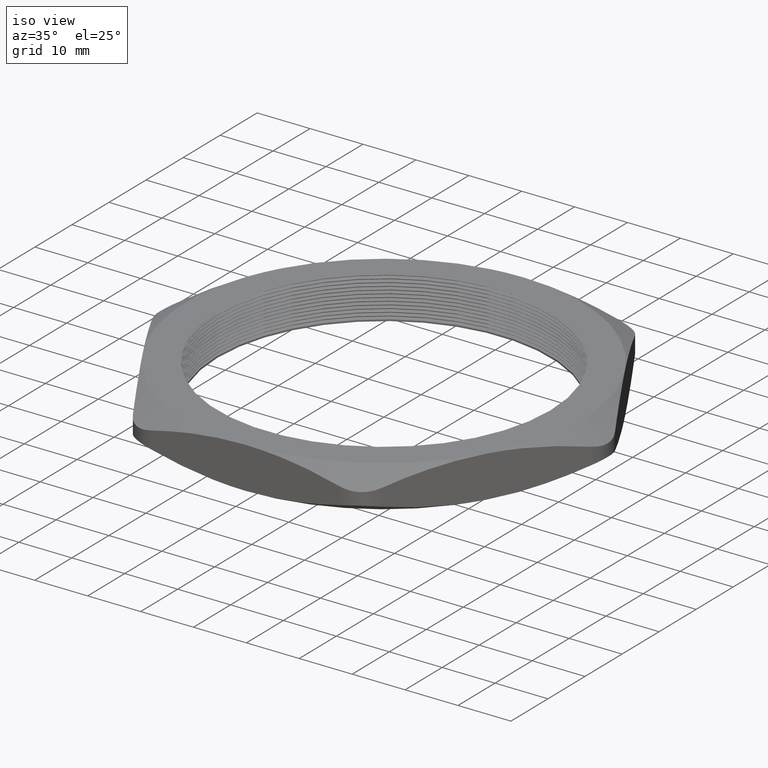
[diagram: clean part render]
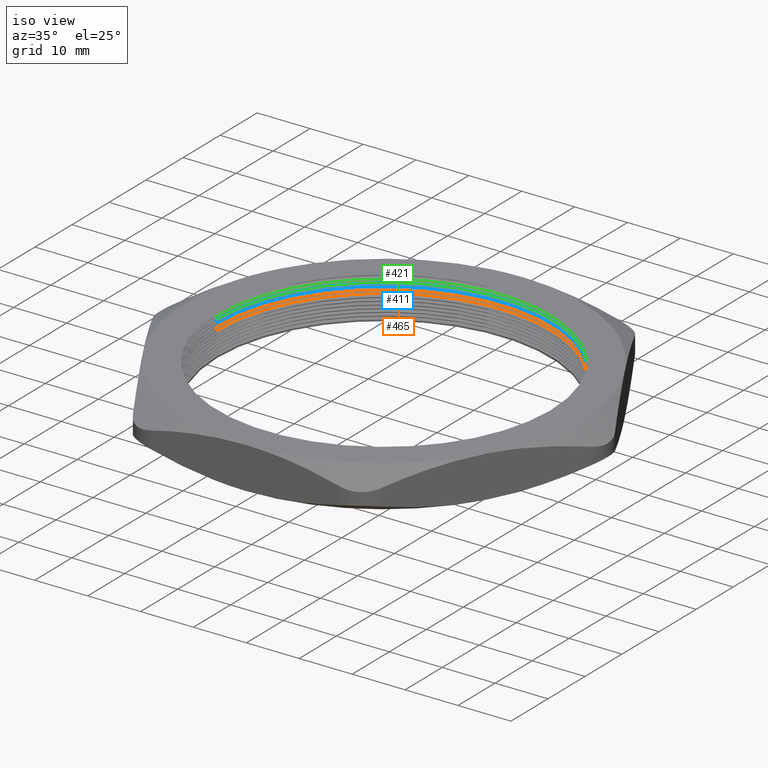
[diagram: same view with three faces highlighted in distinct colors, each labeled with its STEP entity id]
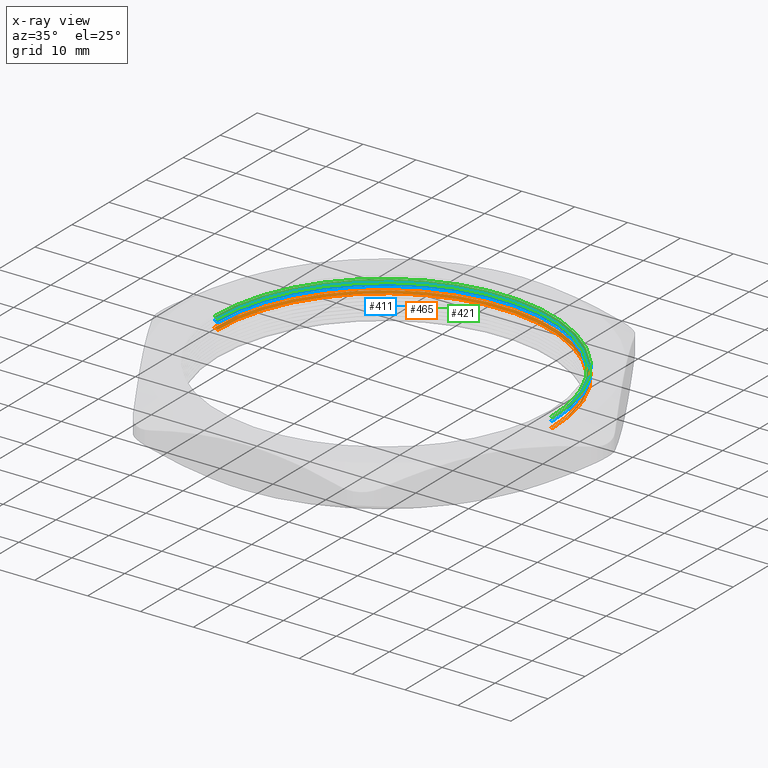
[diagram: x-ray of the same camera — body ghosted, the three highlighted faces saturated]
A machine part, iso view with three faces highlighted in distinct colors.
The next image is the same camera in x-ray (body ghosted, the three faces saturated) — at least one of them is partly hidden behind the body in this view.
Their STEP definitions:

[orange] entity #465 — the highlighted conical surface has half-angle 60 deg.
#444 = ORIENTED_EDGE ( 'NONE', *, *, #583, .T. ) ;
#445 = ORIENTED_EDGE ( 'NONE', *, *, #464, .T. ) ;
#464 = EDGE_CURVE ( 'NONE', #587, #709, #1995, .T. ) ;
#465 = ADVANCED_FACE ( 'NONE', ( #1991 ), #1990, .F. ) ;
#466 = EDGE_LOOP ( 'NONE', ( #467, #468, #444, #445 ) ) ;
#467 = ORIENTED_EDGE ( 'NONE', *, *, #708, .F. ) ;
#468 = ORIENTED_EDGE ( 'NONE', *, *, #1093, .F. ) ;
#583 = EDGE_CURVE ( 'NONE', #706, #587, #2144, .T. ) ;
#587 = VERTEX_POINT ( 'NONE', #2135 ) ;
#705 = VERTEX_POINT ( 'NONE', #2355 ) ;
#706 = VERTEX_POINT ( 'NONE', #2354 ) ;
#708 = EDGE_CURVE ( 'NONE', #705, #709, #2353, .T. ) ;
#709 = VERTEX_POINT ( 'NONE', #2349 ) ;
#1093 = EDGE_CURVE ( 'NONE', #706, #705, #2889, .T. ) ;
#1985 = DIRECTION ( 'NONE',  ( 1.000000000000000000, 0.0000000000000000000, 0.0000000000000000000 ) ) ;
#1986 = DIRECTION ( 'NONE',  ( 0.0000000000000000000, 0.0000000000000000000, 1.000000000000000000 ) ) ;
#1987 = CARTESIAN_POINT ( 'NONE',  ( 0.0000000000000000000, 0.0000000000000000000, 0.1869059892324146900 ) ) ;
#1988 = AXIS2_PLACEMENT_3D ( 'NONE', #1987, #1986, #1985 ) ;
#1990 = CONICAL_SURFACE ( 'NONE', #1988, 1.240000000000000000, 1.047197551196589900 ) ;
#1991 = FACE_OUTER_BOUND ( 'NONE', #466, .T. ) ;
#1992 = DIRECTION ( 'NONE',  ( 1.000000000000000000, 0.0000000000000000000, 0.0000000000000000000 ) ) ;
#1993 = DIRECTION ( 'NONE',  ( 0.0000000000000000000, 0.0000000000000000000, 1.000000000000000000 ) ) ;
#1994 = AXIS2_PLACEMENT_3D ( 'NONE', #2000, #1993, #1992 ) ;
#1995 = CIRCLE ( 'NONE', #1994, 1.260000000000000000 ) ;
#2000 = CARTESIAN_POINT ( 'NONE',  ( 0.0000000000000000000, 0.0000000000000000000, 0.1984529946162075000 ) ) ;
#2135 = CARTESIAN_POINT ( 'NONE',  ( 1.260000000000000000, 1.543054966925665100E-016, 0.1984529946162075000 ) ) ;
#2137 = DIRECTION ( 'NONE',  ( 0.8660254037844346000, 0.0000000000000000000, 0.5000000000000068800 ) ) ;
#2138 = VECTOR ( 'NONE', #2137, 39.37007874015748100 ) ;
#2139 = CARTESIAN_POINT ( 'NONE',  ( 1.240000000000000000, 0.0000000000000000000, 0.1869059892324146900 ) ) ;
#2144 = LINE ( 'NONE', #2139, #2138 ) ;
#2349 = CARTESIAN_POINT ( 'NONE',  ( -1.260000000000000000, 0.0000000000000000000, 0.1984529946162075000 ) ) ;
#2350 = DIRECTION ( 'NONE',  ( -0.8660254037844346000, 1.060575238724902100E-016, 0.5000000000000068800 ) ) ;
#2351 = VECTOR ( 'NONE', #2350, 39.37007874015748100 ) ;
#2352 = CARTESIAN_POINT ( 'NONE',  ( -1.240000000000000000, 1.518562030942717800E-016, 0.1869059892324146900 ) ) ;
#2353 = LINE ( 'NONE', #2352, #2351 ) ;
#2354 = CARTESIAN_POINT ( 'NONE',  ( 1.240000000000000000, 1.518562030942717800E-016, 0.1869059892324146900 ) ) ;
#2355 = CARTESIAN_POINT ( 'NONE',  ( -1.240000000000000000, 0.0000000000000000000, 0.1869059892324146900 ) ) ;
#2886 = DIRECTION ( 'NONE',  ( 1.000000000000000000, 0.0000000000000000000, 0.0000000000000000000 ) ) ;
#2887 = DIRECTION ( 'NONE',  ( 0.0000000000000000000, 0.0000000000000000000, 1.000000000000000000 ) ) ;
#2888 = AXIS2_PLACEMENT_3D ( 'NONE', #2894, #2887, #2886 ) ;
#2889 = CIRCLE ( 'NONE', #2888, 1.240000000000000000 ) ;
#2894 = CARTESIAN_POINT ( 'NONE',  ( 0.0000000000000000000, 0.0000000000000000000, 0.1869059892324146900 ) ) ;

[blue] entity #411 — the highlighted conical surface has half-angle 60 deg.
#410 = EDGE_CURVE ( 'NONE', #590, #621, #1873, .T. ) ;
#411 = ADVANCED_FACE ( 'NONE', ( #1874 ), #1935, .F. ) ;
#412 = EDGE_LOOP ( 'NONE', ( #413, #414, #415, #469 ) ) ;
#413 = ORIENTED_EDGE ( 'NONE', *, *, #622, .F. ) ;
#414 = ORIENTED_EDGE ( 'NONE', *, *, #1080, .F. ) ;
#415 = ORIENTED_EDGE ( 'NONE', *, *, #613, .T. ) ;
#469 = ORIENTED_EDGE ( 'NONE', *, *, #410, .T. ) ;
#590 = VERTEX_POINT ( 'NONE', #2130 ) ;
#613 = EDGE_CURVE ( 'NONE', #629, #590, #2161, .T. ) ;
#621 = VERTEX_POINT ( 'NONE', #2200 ) ;
#622 = EDGE_CURVE ( 'NONE', #628, #621, #2199, .T. ) ;
#628 = VERTEX_POINT ( 'NONE', #2248 ) ;
#629 = VERTEX_POINT ( 'NONE', #2247 ) ;
#1080 = EDGE_CURVE ( 'NONE', #629, #628, #2865, .T. ) ;
#1870 = DIRECTION ( 'NONE',  ( 1.000000000000000000, 0.0000000000000000000, 0.0000000000000000000 ) ) ;
#1871 = DIRECTION ( 'NONE',  ( 0.0000000000000000000, 0.0000000000000000000, 1.000000000000000000 ) ) ;
#1872 = AXIS2_PLACEMENT_3D ( 'NONE', #1878, #1871, #1870 ) ;
#1873 = CIRCLE ( 'NONE', #1872, 1.260000000000000000 ) ;
#1874 = FACE_OUTER_BOUND ( 'NONE', #412, .T. ) ;
#1878 = CARTESIAN_POINT ( 'NONE',  ( 0.0000000000000000000, 0.0000000000000000000, 0.2484529946162074800 ) ) ;
#1930 = DIRECTION ( 'NONE',  ( 1.000000000000000000, 0.0000000000000000000, 0.0000000000000000000 ) ) ;
#1931 = DIRECTION ( 'NONE',  ( 0.0000000000000000000, 0.0000000000000000000, 1.000000000000000000 ) ) ;
#1932 = CARTESIAN_POINT ( 'NONE',  ( 0.0000000000000000000, 0.0000000000000000000, 0.2369059892324147100 ) ) ;
#1933 = AXIS2_PLACEMENT_3D ( 'NONE', #1932, #1931, #1930 ) ;
#1935 = CONICAL_SURFACE ( 'NONE', #1933, 1.240000000000000000, 1.047197551196589900 ) ;
#2130 = CARTESIAN_POINT ( 'NONE',  ( 1.260000000000000000, 1.543054966925665100E-016, 0.2484529946162074800 ) ) ;
#2158 = DIRECTION ( 'NONE',  ( 0.8660254037844346000, 0.0000000000000000000, 0.5000000000000068800 ) ) ;
#2159 = VECTOR ( 'NONE', #2158, 39.37007874015748100 ) ;
#2160 = CARTESIAN_POINT ( 'NONE',  ( 1.240000000000000000, 0.0000000000000000000, 0.2369059892324147100 ) ) ;
#2161 = LINE ( 'NONE', #2160, #2159 ) ;
#2196 = DIRECTION ( 'NONE',  ( -0.8660254037844346000, 1.060575238724902100E-016, 0.5000000000000068800 ) ) ;
#2197 = VECTOR ( 'NONE', #2196, 39.37007874015748100 ) ;
#2198 = CARTESIAN_POINT ( 'NONE',  ( -1.240000000000000000, 1.518562030942717800E-016, 0.2369059892324147100 ) ) ;
#2199 = LINE ( 'NONE', #2198, #2197 ) ;
#2200 = CARTESIAN_POINT ( 'NONE',  ( -1.260000000000000000, 0.0000000000000000000, 0.2484529946162074800 ) ) ;
#2247 = CARTESIAN_POINT ( 'NONE',  ( 1.240000000000000000, 1.518562030942717800E-016, 0.2369059892324147100 ) ) ;
#2248 = CARTESIAN_POINT ( 'NONE',  ( -1.240000000000000000, 0.0000000000000000000, 0.2369059892324147100 ) ) ;
#2857 = DIRECTION ( 'NONE',  ( 1.000000000000000000, 0.0000000000000000000, 0.0000000000000000000 ) ) ;
#2858 = DIRECTION ( 'NONE',  ( 0.0000000000000000000, 0.0000000000000000000, 1.000000000000000000 ) ) ;
#2859 = CARTESIAN_POINT ( 'NONE',  ( 0.0000000000000000000, 0.0000000000000000000, 0.2369059892324147100 ) ) ;
#2860 = AXIS2_PLACEMENT_3D ( 'NONE', #2859, #2858, #2857 ) ;
#2865 = CIRCLE ( 'NONE', #2860, 1.240000000000000000 ) ;

[green] entity #421 — the highlighted conical surface has half-angle 60 deg.
#158 = EDGE_CURVE ( 'NONE', #601, #623, #1306, .T. ) ;
#420 = EDGE_CURVE ( 'NONE', #675, #596, #1934, .T. ) ;
#421 = ADVANCED_FACE ( 'NONE', ( #1925 ), #1924, .F. ) ;
#422 = EDGE_LOOP ( 'NONE', ( #423, #424, #425, #426 ) ) ;
#423 = ORIENTED_EDGE ( 'NONE', *, *, #676, .F. ) ;
#424 = ORIENTED_EDGE ( 'NONE', *, *, #158, .F. ) ;
#425 = ORIENTED_EDGE ( 'NONE', *, *, #673, .T. ) ;
#426 = ORIENTED_EDGE ( 'NONE', *, *, #420, .T. ) ;
#596 = VERTEX_POINT ( 'NONE', #2180 ) ;
#601 = VERTEX_POINT ( 'NONE', #2178 ) ;
#623 = VERTEX_POINT ( 'NONE', #2195 ) ;
#673 = EDGE_CURVE ( 'NONE', #601, #675, #2295, .T. ) ;
#675 = VERTEX_POINT ( 'NONE', #2285 ) ;
#676 = EDGE_CURVE ( 'NONE', #623, #596, #2347, .T. ) ;
#1298 = DIRECTION ( 'NONE',  ( 1.000000000000000000, 0.0000000000000000000, 0.0000000000000000000 ) ) ;
#1299 = DIRECTION ( 'NONE',  ( 0.0000000000000000000, 0.0000000000000000000, 1.000000000000000000 ) ) ;
#1300 = CARTESIAN_POINT ( 'NONE',  ( 0.0000000000000000000, 0.0000000000000000000, 0.2619059892324147000 ) ) ;
#1301 = AXIS2_PLACEMENT_3D ( 'NONE', #1300, #1299, #1298 ) ;
#1306 = CIRCLE ( 'NONE', #1301, 1.240000000000000000 ) ;
#1919 = DIRECTION ( 'NONE',  ( 1.000000000000000000, 0.0000000000000000000, 0.0000000000000000000 ) ) ;
#1920 = DIRECTION ( 'NONE',  ( 0.0000000000000000000, 0.0000000000000000000, 1.000000000000000000 ) ) ;
#1921 = CARTESIAN_POINT ( 'NONE',  ( 0.0000000000000000000, 0.0000000000000000000, 0.2619059892324147000 ) ) ;
#1922 = AXIS2_PLACEMENT_3D ( 'NONE', #1921, #1920, #1919 ) ;
#1924 = CONICAL_SURFACE ( 'NONE', #1922, 1.240000000000000000, 1.047197551196589900 ) ;
#1925 = FACE_OUTER_BOUND ( 'NONE', #422, .T. ) ;
#1926 = DIRECTION ( 'NONE',  ( 1.000000000000000000, 0.0000000000000000000, 0.0000000000000000000 ) ) ;
#1927 = DIRECTION ( 'NONE',  ( 0.0000000000000000000, 0.0000000000000000000, 1.000000000000000000 ) ) ;
#1928 = CARTESIAN_POINT ( 'NONE',  ( 0.0000000000000000000, 0.0000000000000000000, 0.2734529946162074800 ) ) ;
#1929 = AXIS2_PLACEMENT_3D ( 'NONE', #1928, #1927, #1926 ) ;
#1934 = CIRCLE ( 'NONE', #1929, 1.260000000000000000 ) ;
#2178 = CARTESIAN_POINT ( 'NONE',  ( 1.240000000000000000, 1.518562030942717800E-016, 0.2619059892324147000 ) ) ;
#2180 = CARTESIAN_POINT ( 'NONE',  ( -1.260000000000000000, 0.0000000000000000000, 0.2734529946162074800 ) ) ;
#2195 = CARTESIAN_POINT ( 'NONE',  ( -1.240000000000000000, 0.0000000000000000000, 0.2619059892324147000 ) ) ;
#2285 = CARTESIAN_POINT ( 'NONE',  ( 1.260000000000000000, 1.543054966925665100E-016, 0.2734529946162074800 ) ) ;
#2292 = DIRECTION ( 'NONE',  ( 0.8660254037844346000, 0.0000000000000000000, 0.5000000000000068800 ) ) ;
#2293 = VECTOR ( 'NONE', #2292, 39.37007874015748100 ) ;
#2294 = CARTESIAN_POINT ( 'NONE',  ( 1.240000000000000000, 0.0000000000000000000, 0.2619059892324147000 ) ) ;
#2295 = LINE ( 'NONE', #2294, #2293 ) ;
#2344 = DIRECTION ( 'NONE',  ( -0.8660254037844346000, 1.060575238724902100E-016, 0.5000000000000068800 ) ) ;
#2345 = VECTOR ( 'NONE', #2344, 39.37007874015748100 ) ;
#2346 = CARTESIAN_POINT ( 'NONE',  ( -1.240000000000000000, 1.518562030942717800E-016, 0.2619059892324147000 ) ) ;
#2347 = LINE ( 'NONE', #2346, #2345 ) ;